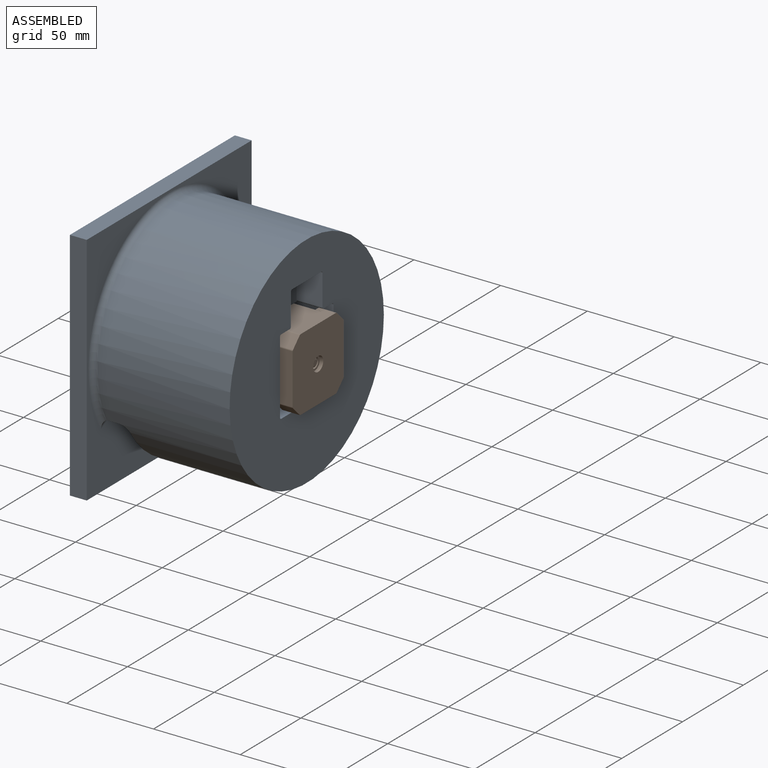
[diagram: assembled view]
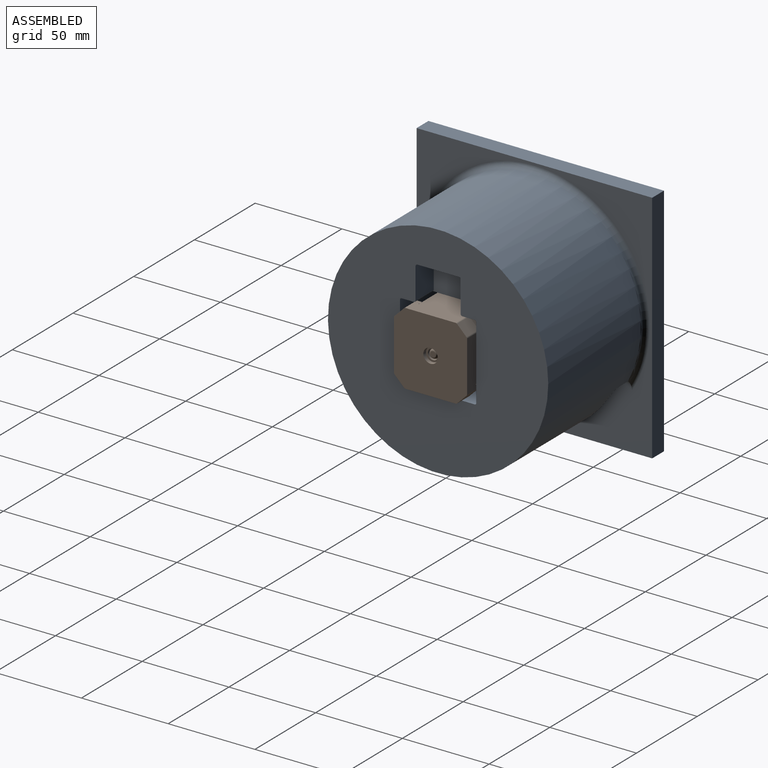
[diagram: assembled view, second angle]
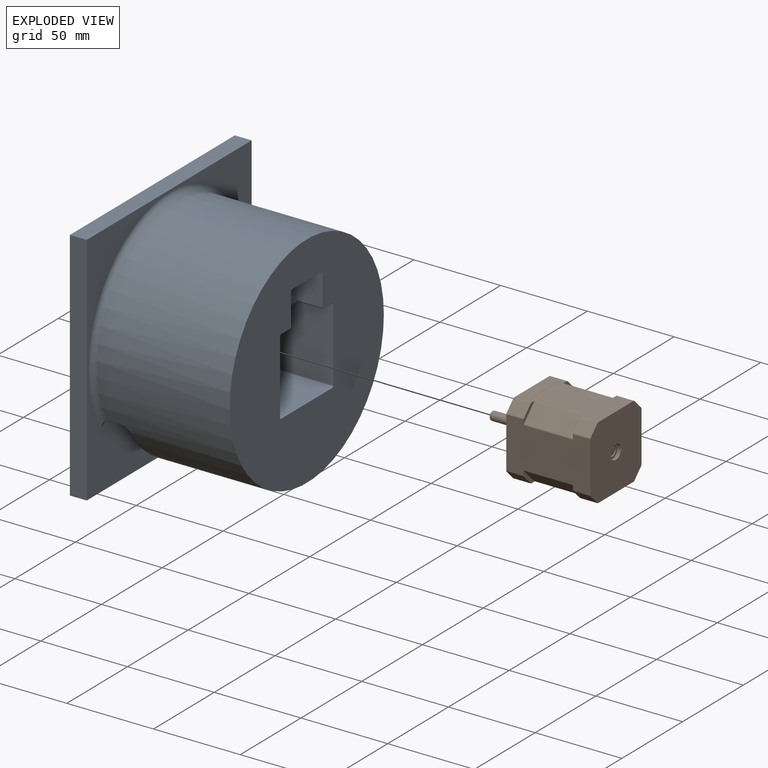
[diagram: exploded view]
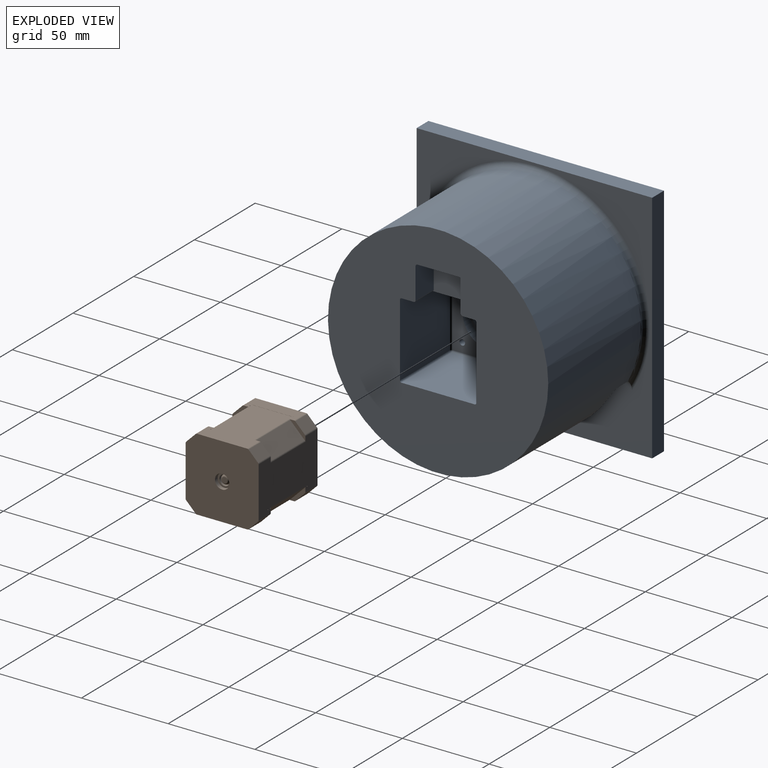
[diagram: exploded view, second angle]
ASSEMBLY  parts=2 mates=2
PART A: 50 faces, bbox 89x148.6x142.2 mm
  f0: cylinder r=63.5mm len=127mm, axis (1,0,0), area 28754mm2, adj f2,f8,f9,f10,f12,f13,f14,f15
  f1: plane 42x41mm, normal (0,0,-1), area 1302mm2, adj f2,f18,f19,f31,f32,f33,f38
  f2: plane 127x127mm, normal (1,0,0), area 10212.5mm2, adj f0,f1,f4,f5,f6,f17,f18,f19
  f3: cylinder r=42.5mm len=85mm, axis (1,0,0), area 9279.8mm2, adj f7,f8,f9,f10,f11,f12,f13,f14
  f4: plane 42x41mm, normal (0,0,1), area 1722mm2, adj f2,f17,f20,f41
  f5: plane 42x41mm, normal (0,1,0), area 1722mm2, adj f2,f17,f18,f37
  f6: plane 42x41mm, normal (0,-1,0), area 1722mm2, adj f2,f19,f20,f42
  f7: plane 135.8x135.8mm, normal (-1,0,0), area 12767.1mm2, adj f3,f45,f46,f47,f48
  f8: cylinder r=3.5mm len=21.14mm, axis (0,0,-1), area 462.3mm2, adj f0,f3
  f9: plane 18.58x9.79mm, normal (0,0.47,-0.88), area 105mm2, adj f0,f3,f14,f16
  f10: plane 18.58x9.79mm, normal (0,-0.47,-0.88), area 105mm2, adj f0,f3,f13,f15
  f11: plane 135.8x135.8mm, normal (1,0,0), area 7149.1mm2, adj f3,f15,f16,f45,f46,f47,f48,f49
  f12: plane 107.35x39.4mm, normal (-1,0,0), area 2206.9mm2, adj f0,f3,f13,f14
  f13: cylinder r=5mm len=21.17mm, axis (0,0.88,-0.47), area 165.1mm2, adj f0,f3,f10,f12
  f14: cylinder r=5mm len=21.17mm, axis (0,0.88,0.47), area 165.1mm2, adj f0,f3,f9,f12
  f15: cylinder r=5mm len=23.66mm, axis (0,-0.88,0.47), area 171.7mm2, adj f0,f3,f10,f11,f49
  f16: cylinder r=5mm len=23.66mm, axis (0,-0.88,-0.47), area 171.7mm2, adj f0,f3,f9,f11,f49
  f17: cylinder r=1mm len=41mm, axis (-1,0,0), area 64.4mm2, adj f2,f4,f5,f39
  f18: cylinder r=1mm len=41mm, axis (1,0,0), area 64.4mm2, adj f1,f2,f5,f36
  f19: cylinder r=1mm len=41mm, axis (-1,0,0), area 64.4mm2, adj f1,f2,f6,f40
  f20: cylinder r=1mm len=41mm, axis (1,0,0), area 64.4mm2, adj f2,f4,f6,f43
  f21: plane 42x42mm, normal (1,0,0), area 1000.1mm2, adj f22,f24,f25,f26,f27,f37,f38,f41
  f22: cylinder r=15.24mm len=30.48mm, axis (1,0,0), area 478.8mm2, adj f21,f23
  f23: plane 81x81mm, normal (-1,0,0), area 4389.1mm2, adj f22,f24,f25,f26,f27,f44
  f24: cylinder r=1.65mm len=5mm, axis (-1,0,0), area 51.8mm2, adj f21,f23
  f25: cylinder r=1.65mm len=5mm, axis (-1,0,0), area 51.8mm2, adj f21,f23
  f26: cylinder r=1.65mm len=5mm, axis (-1,0,0), area 51.8mm2, adj f21,f23
  f27: cylinder r=1.65mm len=5mm, axis (-1,0,0), area 51.8mm2, adj f21,f23
  f28: plane 18x15mm, normal (0,1,0), area 270mm2, adj f2,f31,f32,f35
  f29: plane 18x15mm, normal (0,-1,0), area 270mm2, adj f2,f31,f33,f34
  f30: plane 24x15mm, normal (0,0,-1), area 360mm2, adj f2,f31,f34,f35
  f31: plane 28x20mm, normal (1,0,0), area 520mm2, adj f1,f28,f29,f30,f32,f33,f34,f35
  f32: cylinder r=1mm len=15mm, axis (1,0,0), area 23.6mm2, adj f1,f2,f28,f31
  f33: cylinder r=1mm len=15mm, axis (-1,0,0), area 23.6mm2, adj f1,f2,f29,f31
  f34: cylinder r=1mm len=15mm, axis (1,0,0), area 23.6mm2, adj f2,f29,f30,f31
  f35: cylinder r=1mm len=15mm, axis (-1,0,0), area 23.6mm2, adj f2,f28,f30,f31
  f36: sphere r=1mm, area 1.6mm2, adj f18,f37,f38
  f37: cylinder r=1mm len=42mm, axis (0,0,1), area 66mm2, adj f5,f21,f36,f39
  f38: cylinder r=1mm len=42mm, axis (0,1,0), area 66mm2, adj f1,f21,f36,f40
  f39: sphere r=1mm, area 1.6mm2, adj f17,f37,f41
  f40: sphere r=1mm, area 1.6mm2, adj f19,f38,f42
  f41: cylinder r=1mm len=42mm, axis (0,-1,0), area 66mm2, adj f4,f21,f39,f43
  f42: cylinder r=1mm len=42mm, axis (0,0,-1), area 66mm2, adj f6,f21,f40,f43
  f43: sphere r=1mm, area 1.6mm2, adj f20,f41,f42
  f44: torus R=40.5mm, axis (-1,0,0), area 824.6mm2, adj f3,f23
  f45: plane 135.8x9.72mm, normal (0,1,0), area 1319.4mm2, adj f7,f11,f46,f48
  f46: plane 135.8x9.72mm, normal (0,0,-1), area 1319.4mm2, adj f7,f11,f45,f47
  f47: plane 135.8x9.72mm, normal (0,-1,0), area 1319.4mm2, adj f7,f11,f46,f48
  f48: plane 135.8x9.72mm, normal (0,0,1), area 1319.4mm2, adj f7,f11,f45,f47
  f49: torus R=66.5mm, axis (1,0,0), area 1273.6mm2, adj f0,f11,f15,f16
PART B: 110 faces, bbox 42.1x42.1x71.5 mm
  f0: plane 42.1x42.1mm, normal (0,0,-1), area 1643.7mm2, adj f1,f10,f15,f16,f17,f18,f19,f20
  f1: cylinder r=4.15mm len=8.3mm, axis (0,0,-1), area 104.3mm2, adj f0,f2
  f2: plane 8.3x8.3mm, normal (0,0,-1), area 3.8mm2, adj f1,f4
  f3: plane 6x6mm, normal (0,0,-1), area 8.6mm2, adj f6,f7
  f4: cylinder r=4mm len=8mm, axis (0,0,-1), area 50.3mm2, adj f2,f5
  f5: plane 8x8mm, normal (0,0,-1), area 22mm2, adj f4,f6
  f6: cylinder r=3mm len=6mm, axis (0,0,-1), area 37.7mm2, adj f3,f5
  f7: cylinder r=2.5mm len=5mm, axis (0,0,-1), area 15.7mm2, adj f3,f8
  f8: torus R=1.5mm, axis (0,0,-1), area 21.1mm2, adj f7,f9
  f9: plane 3x3mm, normal (0,0,-1), area 7.1mm2, adj f8
  f10: cylinder r=1mm len=10mm, axis (0,0,1), area 7.9mm2, adj f0,f14,f24,f102
  f11: plane 9.46x9.46mm, normal (0,0,1), area 22.8mm2, adj f15,f16,f17,f18,f34,f35,f36,f37
  f12: plane 9.46x9.46mm, normal (0,0,1), area 22.8mm2, adj f18,f19,f20,f21,f22,f26,f38,f39
  f13: plane 9.46x9.46mm, normal (0,0,1), area 22.8mm2, adj f30,f31,f32,f33,f34,f97,f98,f99
  f14: plane 9.46x9.46mm, normal (0,0,1), area 22.8mm2, adj f10,f22,f23,f24,f25,f26,f27,f28
  f15: cylinder r=1mm len=10mm, axis (0,0,-1), area 7.9mm2, adj f0,f11,f16,f98
  f16: plane 10x5.51mm, normal (0.71,-0.71,0), area 78mm2, adj f0,f11,f15,f17
  f17: cylinder r=1mm len=10mm, axis (0,0,1), area 7.9mm2, adj f0,f11,f16,f18
  f18: plane 29.07x10mm, normal (0,-1,0), area 218.7mm2, adj f0,f11,f12,f17,f19,f94,f95,f96
  f19: cylinder r=1mm len=10mm, axis (0,0,-1), area 7.9mm2, adj f0,f12,f18,f20
  f20: plane 10x5.51mm, normal (-0.71,-0.71,0), area 78mm2, adj f0,f12,f19,f21
  f21: cylinder r=1mm len=10mm, axis (0,0,1), area 7.9mm2, adj f0,f12,f20,f22
  f22: plane 29.07x10mm, normal (-1,0,0), area 218.7mm2, adj f0,f12,f14,f21,f23,f25,f108,f109
  f23: cylinder r=1mm len=10mm, axis (0,0,-1), area 7.9mm2, adj f0,f14,f22,f24
  f24: plane 10x5.51mm, normal (-0.71,0.71,0), area 78mm2, adj f0,f10,f14,f23
  f25: plane 3x0.05mm, normal (0,-1,0), area 0.1mm2, adj f14,f22,f26,f109
  f26: plane 34.5x24mm, normal (-1,0,0), area 804.4mm2, adj f12,f14,f25,f27,f41,f43,f45,f91
  f27: cylinder r=1mm len=28.5mm, axis (0,0,-1), area 22.4mm2, adj f14,f26,f28,f45
  f28: plane 28.5x8.41mm, normal (-0.71,0.71,0), area 339.1mm2, adj f14,f27,f29,f45
  f29: cylinder r=1mm len=28.5mm, axis (0,0,1), area 22.4mm2, adj f14,f28,f30,f45
  f30: plane 34.5x24mm, normal (0,1,0), area 804.4mm2, adj f13,f14,f29,f31,f44,f45,f80,f81
  f31: cylinder r=1mm len=28.5mm, axis (0,0,-1), area 22.4mm2, adj f13,f30,f32,f44
  f32: plane 28.5x8.41mm, normal (0.71,0.71,0), area 339.1mm2, adj f13,f31,f33,f44
  f33: cylinder r=1mm len=28.5mm, axis (0,0,1), area 22.4mm2, adj f13,f32,f34,f44
  f34: plane 34.5x24mm, normal (1,0,0), area 804.4mm2, adj f11,f13,f33,f35,f42,f44,f77,f78
  f35: cylinder r=1mm len=28.5mm, axis (0,0,-1), area 22.4mm2, adj f11,f34,f36,f42
  f36: plane 28.5x8.41mm, normal (0.71,-0.71,0), area 339.1mm2, adj f11,f35,f37,f42
  f37: cylinder r=1mm len=28.5mm, axis (0,0,1), area 22.4mm2, adj f11,f36,f38,f42
  f38: plane 34.5x24mm, normal (0,-1,0), area 804.4mm2, adj f11,f12,f37,f39,f42,f43,f88,f89
  f39: cylinder r=1mm len=28.5mm, axis (0,0,-1), area 22.4mm2, adj f12,f38,f40,f43
  f40: plane 28.5x8.41mm, normal (-0.71,-0.71,0), area 339.1mm2, adj f12,f39,f41,f43
  f41: cylinder r=1mm len=28.5mm, axis (0,0,1), area 22.4mm2, adj f12,f26,f40,f43
  f42: plane 9.46x9.46mm, normal (0,0,-1), area 22.8mm2, adj f34,f35,f36,f37,f38,f46,f47,f48
  f43: plane 9.46x9.46mm, normal (0,0,-1), area 22.8mm2, adj f26,f38,f39,f40,f41,f83,f84,f85
  f44: plane 9.46x9.46mm, normal (0,0,-1), area 22.8mm2, adj f30,f31,f32,f33,f34,f72,f73,f74
  f45: plane 9.46x9.46mm, normal (0,0,-1), area 22.8mm2, adj f26,f27,f28,f29,f30,f69,f70,f71
  f46: cylinder r=1mm len=10mm, axis (0,0,-1), area 7.9mm2, adj f42,f47,f49,f76
  f47: plane 10x5.51mm, normal (0.71,-0.71,0), area 78mm2, adj f42,f46,f48,f49
  f48: cylinder r=1mm len=10mm, axis (0,0,1), area 7.9mm2, adj f42,f47,f49,f87
  f49: plane 42.1x42.1mm, normal (0,0,1), area 865.3mm2, adj f46,f47,f48,f50,f61,f64,f65,f68
  f50: cylinder r=16mm len=32mm, axis (0,0,1), area 100.5mm2, adj f49,f51
  f51: plane 32x32mm, normal (0,0,1), area 424.1mm2, adj f50,f53
  f52: plane 6x6mm, normal (0,0,1), area 8.6mm2, adj f57,f58
  f53: cylinder r=11mm len=22mm, axis (0,0,1), area 172.8mm2, adj f51,f54
  f54: plane 22x22mm, normal (0,0,1), area 316.5mm2, adj f53,f55
  f55: cylinder r=4.5mm len=9mm, axis (0,0,1), area 42.4mm2, adj f54,f56
  f56: plane 9x9mm, normal (0,0,1), area 35.3mm2, adj f55,f57
  f57: cylinder r=3mm len=6mm, axis (0,0,1), area 18.8mm2, adj f52,f56
  f58: cylinder r=2.5mm len=23mm, axis (0,0,1), area 361.3mm2, adj f52,f59
  f59: torus R=1.5mm, axis (0,0,1), area 21.1mm2, adj f58,f60
  f60: plane 3x3mm, normal (0,0,1), area 7.1mm2, adj f59
  f61: cylinder r=1.5mm len=4mm, axis (0,0,1), area 37.7mm2, adj f49,f62
  f62: plane 3x3mm, normal (0,0,1), area 7.1mm2, adj f61
  f63: plane 3x3mm, normal (0,0,1), area 7.1mm2, adj f64
  f64: cylinder r=1.5mm len=4mm, axis (0,0,1), area 37.7mm2, adj f49,f63
  f65: cylinder r=1.5mm len=4mm, axis (0,0,-1), area 37.7mm2, adj f49,f66
  f66: plane 3x3mm, normal (0,0,1), area 7.1mm2, adj f65
  f67: plane 3x3mm, normal (0,0,1), area 7.1mm2, adj f68
  f68: cylinder r=1.5mm len=4mm, axis (0,0,-1), area 37.7mm2, adj f49,f67
  f69: cylinder r=1mm len=10mm, axis (0,0,-1), area 7.9mm2, adj f45,f49,f70,f83
  f70: plane 10x5.51mm, normal (-0.71,0.71,0), area 78mm2, adj f45,f49,f69,f71
  f71: cylinder r=1mm len=10mm, axis (0,0,1), area 7.9mm2, adj f45,f49,f70,f72
  f72: plane 29.07x10mm, normal (0,1,0), area 218.7mm2, adj f44,f45,f49,f71,f73,f80,f81,f82
  f73: cylinder r=1mm len=10mm, axis (0,0,-1), area 7.9mm2, adj f44,f49,f72,f74
  f74: plane 10x5.51mm, normal (0.71,0.71,0), area 78mm2, adj f44,f49,f73,f75
  f75: cylinder r=1mm len=10mm, axis (0,0,1), area 7.9mm2, adj f44,f49,f74,f76
  f76: plane 29.07x10mm, normal (1,0,0), area 218.7mm2, adj f42,f44,f46,f49,f75,f77,f78,f79
  f77: plane 3x0.05mm, normal (0,-1,0), area 0.1mm2, adj f34,f44,f76,f78
  f78: plane 24x0.05mm, normal (0,0,-1), area 1.2mm2, adj f34,f76,f77,f79
  f79: plane 3x0.05mm, normal (0,1,0), area 0.1mm2, adj f34,f42,f76,f78
  f80: plane 3x0.05mm, normal (1,0,0), area 0.1mm2, adj f30,f45,f72,f81
  f81: plane 24x0.05mm, normal (0,0,-1), area 1.2mm2, adj f30,f72,f80,f82
  f82: plane 3x0.05mm, normal (-1,0,0), area 0.1mm2, adj f30,f44,f72,f81
  f83: plane 29.07x10mm, normal (-1,0,0), area 218.7mm2, adj f43,f45,f49,f69,f84,f91,f92,f93
  f84: cylinder r=1mm len=10mm, axis (0,0,1), area 7.9mm2, adj f43,f49,f83,f85
  f85: plane 10x5.51mm, normal (-0.71,-0.71,0), area 78mm2, adj f43,f49,f84,f86
  f86: cylinder r=1mm len=10mm, axis (0,0,-1), area 7.9mm2, adj f43,f49,f85,f87
  f87: plane 29.07x10mm, normal (0,-1,0), area 218.7mm2, adj f42,f43,f48,f49,f86,f88,f89,f90
  f88: plane 3x0.05mm, normal (-1,0,0), area 0.1mm2, adj f38,f42,f87,f89
  f89: plane 24x0.05mm, normal (0,0,-1), area 1.2mm2, adj f38,f87,f88,f90
  f90: plane 3x0.05mm, normal (1,0,0), area 0.1mm2, adj f38,f43,f87,f89
  f91: plane 3x0.05mm, normal (0,1,0), area 0.1mm2, adj f26,f43,f83,f92
  f92: plane 24x0.05mm, normal (0,0,-1), area 1.2mm2, adj f26,f83,f91,f93
  f93: plane 3x0.05mm, normal (0,-1,0), area 0.1mm2, adj f26,f45,f83,f92
  f94: plane 3x0.05mm, normal (-1,0,0), area 0.1mm2, adj f11,f18,f38,f95
  f95: plane 24x0.05mm, normal (0,0,1), area 1.2mm2, adj f18,f38,f94,f96
  f96: plane 3x0.05mm, normal (1,0,0), area 0.1mm2, adj f12,f18,f38,f95
  f97: plane 3x0.05mm, normal (0,-1,0), area 0.1mm2, adj f13,f34,f98,f107
  f98: plane 29.07x10mm, normal (1,0,0), area 218.7mm2, adj f0,f11,f13,f15,f97,f99,f106,f107
  f99: cylinder r=1mm len=10mm, axis (0,0,1), area 7.9mm2, adj f0,f13,f98,f100
  f100: plane 10x5.51mm, normal (0.71,0.71,0), area 78mm2, adj f0,f13,f99,f101
  f101: cylinder r=1mm len=10mm, axis (0,0,-1), area 7.9mm2, adj f0,f13,f100,f102
  f102: plane 29.07x10mm, normal (0,1,0), area 218.7mm2, adj f0,f10,f13,f14,f101,f103,f104,f105
  f103: plane 3x0.05mm, normal (-1,0,0), area 0.1mm2, adj f13,f30,f102,f104
  f104: plane 24x0.05mm, normal (0,0,1), area 1.2mm2, adj f30,f102,f103,f105
  f105: plane 3x0.05mm, normal (1,0,0), area 0.1mm2, adj f14,f30,f102,f104
  f106: plane 3x0.05mm, normal (0,1,0), area 0.1mm2, adj f11,f34,f98,f107
  f107: plane 24x0.05mm, normal (0,0,1), area 1.2mm2, adj f34,f97,f98,f106
  f108: plane 3x0.05mm, normal (0,1,0), area 0.1mm2, adj f12,f22,f26,f109
  f109: plane 24x0.05mm, normal (0,0,1), area 1.2mm2, adj f22,f25,f26,f108
PLACE A t=(-10.79,-46.73,97.05)mm
PLACE B rot(axis=(0.71,0,-0.71),180deg) t=(43.24,-46.53,97.25)mm
MATE planar B.f1 <-> A.f0  axis (-1,0,0) through (18.99,-46.53,97.25)mm
MATE fastened A.f24 <-> B.f65  axis (-1,0,0) through (18.99,-31.23,112.55)mm
